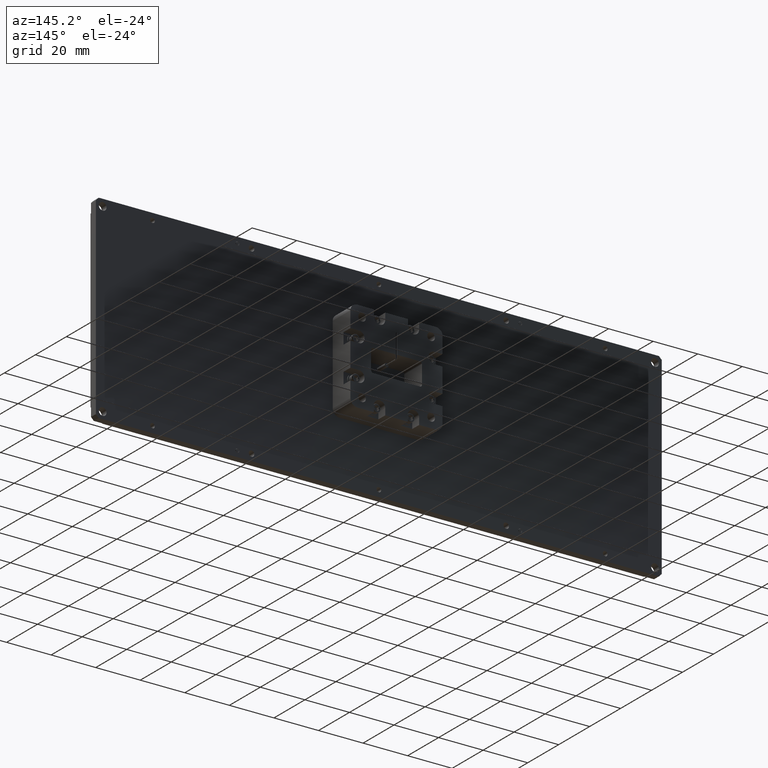
[diagram: clean part render]
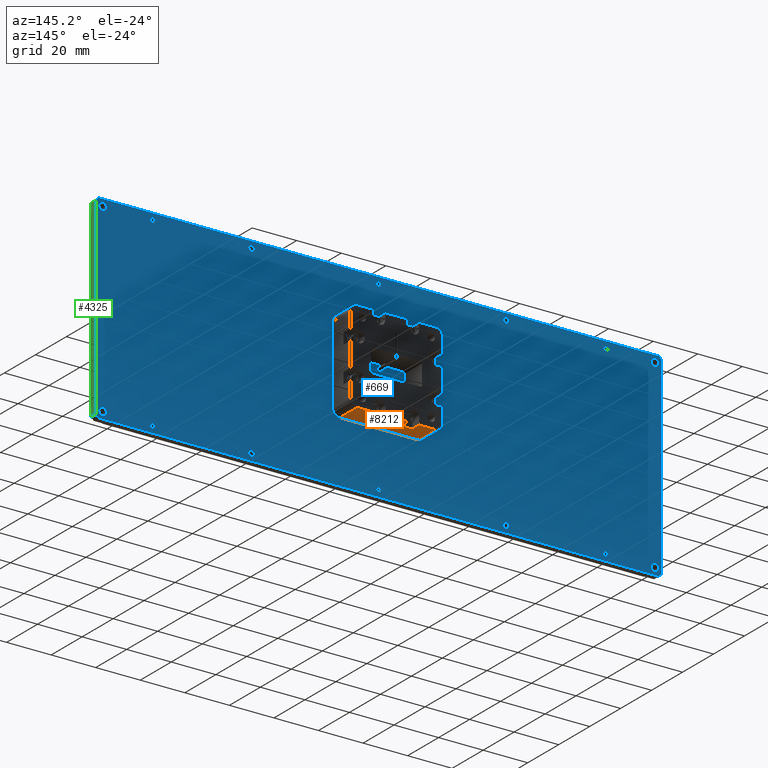
[diagram: same view with three faces highlighted in distinct colors, each labeled with its STEP entity id]
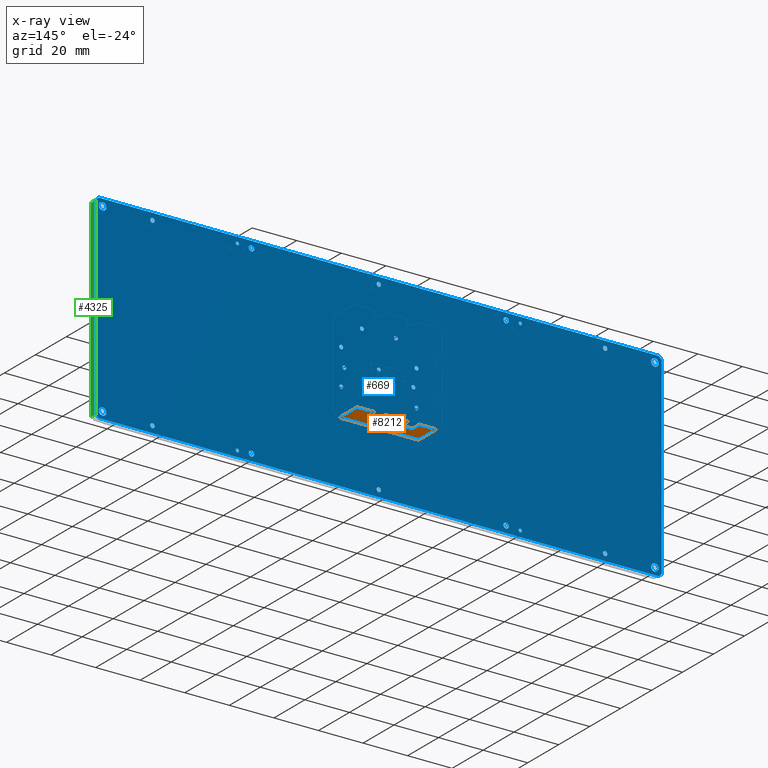
[diagram: x-ray of the same camera — body ghosted, the three highlighted faces saturated]
A machine part, auxiliary view with three faces highlighted in distinct colors.
The next image is the same camera in x-ray (body ghosted, the three faces saturated) — at least one of them is partly hidden behind the body in this view.
Their STEP definitions:

[orange] entity #8212 — the highlighted planar face has unit normal (0, -0, 1).
#454 = LINE ( 'NONE', #5999, #4130 ) ;
#583 = VERTEX_POINT ( 'NONE', #3434 ) ;
#700 = VERTEX_POINT ( 'NONE', #942 ) ;
#942 = CARTESIAN_POINT ( 'NONE',  ( -27.86510945080825152, 30.29423224274894721, -16.60516518917519591 ) ) ;
#962 = DIRECTION ( 'NONE',  ( -1.000000000000000000, 0.000000000000000000, 0.000000000000000000 ) ) ;
#1268 = EDGE_CURVE ( 'NONE', #11070, #700, #12288, .T. ) ;
#1515 = DIRECTION ( 'NONE',  ( -0.000000000000000000, 1.000000000000000000, -0.000000000000000000 ) ) ;
#1516 = CARTESIAN_POINT ( 'NONE',  ( -32.94510945080825337, 25.84923224274894693, -16.60516518917519591 ) ) ;
#1749 = ORIENTED_EDGE ( 'NONE', *, *, #2022, .F. ) ;
#1779 = CARTESIAN_POINT ( 'NONE',  ( -22.78510945080825323, 18.86423224274894750, -16.60516518917519591 ) ) ;
#1864 = EDGE_CURVE ( 'NONE', #583, #9210, #6016, .T. ) ;
#1911 = VECTOR ( 'NONE', #8780, 1000.000000000000000 ) ;
#2022 = EDGE_CURVE ( 'NONE', #11070, #6120, #12619, .T. ) ;
#2310 = EDGE_CURVE ( 'NONE', #9761, #583, #7180, .T. ) ;
#2418 = CARTESIAN_POINT ( 'NONE',  ( -22.78510945080825323, 30.29423224274894721, -16.60516518917519591 ) ) ;
#2638 = DIRECTION ( 'NONE',  ( -1.000000000000000000, 0.000000000000000000, 1.675980364211204327E-16 ) ) ;
#2652 = CARTESIAN_POINT ( 'NONE',  ( -40.43810945080826258, 30.29423224274894721, -16.60516518917518880 ) ) ;
#2673 = EDGE_LOOP ( 'NONE', ( #12142, #13110, #6164, #7332, #6672, #7951, #8255, #12673, #10383, #13485, #1749, #6540 ) ) ;
#2818 = DIRECTION ( 'NONE',  ( 0.000000000000000000, -1.000000000000000000, 0.000000000000000000 ) ) ;
#2916 = CARTESIAN_POINT ( 'NONE',  ( -12.62510945080825131, 25.84923224274894693, -16.60516518917519591 ) ) ;
#3052 = DIRECTION ( 'NONE',  ( -0.000000000000000000, 1.000000000000000000, -0.000000000000000000 ) ) ;
#3203 = DIRECTION ( 'NONE',  ( -1.000000000000000000, -0.000000000000000000, -0.000000000000000000 ) ) ;
#3318 = VECTOR ( 'NONE', #12961, 1000.000000000000000 ) ;
#3359 = LINE ( 'NONE', #7629, #4736 ) ;
#3434 = CARTESIAN_POINT ( 'NONE',  ( -40.43810945080826258, 18.86423224274894750, -16.60516518917518880 ) ) ;
#3436 = CARTESIAN_POINT ( 'NONE',  ( -5.132109450808237661, 18.86423224274894750, -16.60516518917519591 ) ) ;
#3471 = VECTOR ( 'NONE', #3203, 1000.000000000000000 ) ;
#3775 = EDGE_CURVE ( 'NONE', #9837, #9761, #3871, .T. ) ;
#3792 = VERTEX_POINT ( 'NONE', #10192 ) ;
#3871 = LINE ( 'NONE', #12362, #8957 ) ;
#3905 = DIRECTION ( 'NONE',  ( 1.675980364211204327E-16, -0.000000000000000000, 1.000000000000000000 ) ) ;
#4130 = VECTOR ( 'NONE', #4873, 1000.000000000000000 ) ;
#4523 = LINE ( 'NONE', #2418, #3318 ) ;
#4736 = VECTOR ( 'NONE', #8824, 1000.000000000000000 ) ;
#4741 = DIRECTION ( 'NONE',  ( 1.000000000000000000, 0.000000000000000000, -1.675980364211204327E-16 ) ) ;
#4873 = DIRECTION ( 'NONE',  ( -0.000000000000000000, 1.000000000000000000, -0.000000000000000000 ) ) ;
#4932 = CARTESIAN_POINT ( 'NONE',  ( -17.70510945080824783, 25.84923224274894693, -16.60516518917519591 ) ) ;
#5181 = CARTESIAN_POINT ( 'NONE',  ( -22.78510945080825323, 30.29423224274894721, -16.60516518917519591 ) ) ;
#5239 = VERTEX_POINT ( 'NONE', #12028 ) ;
#5532 = EDGE_CURVE ( 'NONE', #9837, #5239, #8624, .T. ) ;
#5953 = EDGE_CURVE ( 'NONE', #8318, #9934, #12687, .T. ) ;
#5999 = CARTESIAN_POINT ( 'NONE',  ( -32.94510945080825337, 25.84923224274894693, -16.60516518917519591 ) ) ;
#6016 = LINE ( 'NONE', #2652, #7693 ) ;
#6120 = VERTEX_POINT ( 'NONE', #1516 ) ;
#6164 = ORIENTED_EDGE ( 'NONE', *, *, #5953, .F. ) ;
#6328 = CARTESIAN_POINT ( 'NONE',  ( -12.62510945080825131, 25.84923224274894693, -16.60516518917519591 ) ) ;
#6540 = ORIENTED_EDGE ( 'NONE', *, *, #1268, .T. ) ;
#6562 = VECTOR ( 'NONE', #962, 1000.000000000000000 ) ;
#6672 = ORIENTED_EDGE ( 'NONE', *, *, #5532, .F. ) ;
#7021 = VECTOR ( 'NONE', #2638, 1000.000000000000000 ) ;
#7031 = VECTOR ( 'NONE', #9474, 1000.000000000000000 ) ;
#7180 = LINE ( 'NONE', #1779, #7021 ) ;
#7275 = CARTESIAN_POINT ( 'NONE',  ( -27.86510945080825152, 25.84923224274894693, -16.60516518917519591 ) ) ;
#7332 = ORIENTED_EDGE ( 'NONE', *, *, #12718, .T. ) ;
#7629 = CARTESIAN_POINT ( 'NONE',  ( -22.78510945080825323, 30.29423224274894721, -16.60516518917519591 ) ) ;
#7693 = VECTOR ( 'NONE', #12401, 1000.000000000000000 ) ;
#7951 = ORIENTED_EDGE ( 'NONE', *, *, #3775, .T. ) ;
#8106 = CARTESIAN_POINT ( 'NONE',  ( -17.70510945080824783, 25.84923224274894693, -16.60516518917519591 ) ) ;
#8212 = ADVANCED_FACE ( 'NONE', ( #11278 ), #9314, .F. ) ;
#8255 = ORIENTED_EDGE ( 'NONE', *, *, #2310, .T. ) ;
#8318 = VERTEX_POINT ( 'NONE', #2916 ) ;
#8442 = CARTESIAN_POINT ( 'NONE',  ( -40.43810945080826258, 30.29423224274894721, -16.60516518917518880 ) ) ;
#8624 = LINE ( 'NONE', #5181, #7031 ) ;
#8780 = DIRECTION ( 'NONE',  ( -0.000000000000000000, 1.000000000000000000, -0.000000000000000000 ) ) ;
#8824 = DIRECTION ( 'NONE',  ( -1.000000000000000000, 0.000000000000000000, 1.675980364211204327E-16 ) ) ;
#8957 = VECTOR ( 'NONE', #2818, 1000.000000000000000 ) ;
#8971 = CARTESIAN_POINT ( 'NONE',  ( -27.86510945080825152, 25.84923224274894693, -16.60516518917519591 ) ) ;
#9054 = CARTESIAN_POINT ( 'NONE',  ( -32.94510945080825337, 30.29423224274894721, -16.60516518917519591 ) ) ;
#9210 = VERTEX_POINT ( 'NONE', #8442 ) ;
#9314 = PLANE ( 'NONE',  #12669 ) ;
#9474 = DIRECTION ( 'NONE',  ( -1.000000000000000000, 0.000000000000000000, 1.675980364211204327E-16 ) ) ;
#9604 = CARTESIAN_POINT ( 'NONE',  ( -17.70510945080824783, 25.84923224274894693, -16.60516518917519591 ) ) ;
#9761 = VERTEX_POINT ( 'NONE', #3436 ) ;
#9837 = VERTEX_POINT ( 'NONE', #12913 ) ;
#9934 = VERTEX_POINT ( 'NONE', #8106 ) ;
#10178 = VECTOR ( 'NONE', #1515, 1000.000000000000000 ) ;
#10192 = CARTESIAN_POINT ( 'NONE',  ( -17.70510945080824783, 30.29423224274894721, -16.60516518917519591 ) ) ;
#10297 = CARTESIAN_POINT ( 'NONE',  ( -22.78510945080825323, 30.29423224274894721, -16.60516518917519591 ) ) ;
#10383 = ORIENTED_EDGE ( 'NONE', *, *, #11171, .F. ) ;
#10591 = VECTOR ( 'NONE', #3052, 1000.000000000000000 ) ;
#11070 = VERTEX_POINT ( 'NONE', #8971 ) ;
#11171 = EDGE_CURVE ( 'NONE', #13474, #9210, #4523, .T. ) ;
#11202 = LINE ( 'NONE', #4932, #10178 ) ;
#11278 = FACE_OUTER_BOUND ( 'NONE', #2673, .T. ) ;
#12028 = CARTESIAN_POINT ( 'NONE',  ( -12.62510945080825131, 30.29423224274894721, -16.60516518917519591 ) ) ;
#12076 = CARTESIAN_POINT ( 'NONE',  ( -27.86510945080825152, 25.84923224274894693, -16.60516518917519591 ) ) ;
#12142 = ORIENTED_EDGE ( 'NONE', *, *, #12149, .F. ) ;
#12149 = EDGE_CURVE ( 'NONE', #3792, #700, #3359, .T. ) ;
#12288 = LINE ( 'NONE', #12076, #1911 ) ;
#12362 = CARTESIAN_POINT ( 'NONE',  ( -5.132109450808237661, 30.29423224274894721, -16.60516518917519591 ) ) ;
#12401 = DIRECTION ( 'NONE',  ( -0.000000000000000000, 1.000000000000000000, -0.000000000000000000 ) ) ;
#12453 = LINE ( 'NONE', #6328, #10591 ) ;
#12619 = LINE ( 'NONE', #7275, #6562 ) ;
#12669 = AXIS2_PLACEMENT_3D ( 'NONE', #10297, #3905, #4741 ) ;
#12673 = ORIENTED_EDGE ( 'NONE', *, *, #1864, .T. ) ;
#12687 = LINE ( 'NONE', #9604, #3471 ) ;
#12718 = EDGE_CURVE ( 'NONE', #8318, #5239, #12453, .T. ) ;
#12913 = CARTESIAN_POINT ( 'NONE',  ( -5.132109450808237661, 30.29423224274894721, -16.60516518917519591 ) ) ;
#12961 = DIRECTION ( 'NONE',  ( -1.000000000000000000, 0.000000000000000000, 1.675980364211204327E-16 ) ) ;
#13110 = ORIENTED_EDGE ( 'NONE', *, *, #13813, .F. ) ;
#13474 = VERTEX_POINT ( 'NONE', #9054 ) ;
#13485 = ORIENTED_EDGE ( 'NONE', *, *, #13823, .F. ) ;
#13813 = EDGE_CURVE ( 'NONE', #9934, #3792, #11202, .T. ) ;
#13823 = EDGE_CURVE ( 'NONE', #6120, #13474, #454, .T. ) ;

[blue] entity #669 — the highlighted planar face has unit normal (0, 1, 0).
#16 = CARTESIAN_POINT ( 'NONE',  ( -22.78510945080824968, 18.86423224274894750, 7.270834810824795547 ) ) ;
#27 = VERTEX_POINT ( 'NONE', #10537 ) ;
#32 = CIRCLE ( 'NONE', #11471, 1.249999999999987121 ) ;
#58 = VERTEX_POINT ( 'NONE', #4154 ) ;
#83 = AXIS2_PLACEMENT_3D ( 'NONE', #10064, #5782, #714 ) ;
#106 = CARTESIAN_POINT ( 'NONE',  ( -86.28510945080824968, 18.86423224274894750, -40.71611518917521266 ) ) ;
#110 = CARTESIAN_POINT ( 'NONE',  ( -22.78510945080824968, 18.86423224274894750, 41.68783481082478204 ) ) ;
#164 = DIRECTION ( 'NONE',  ( -0.000000000000000000, 1.000000000000000000, -0.000000000000000000 ) ) ;
#179 = DIRECTION ( 'NONE',  ( -0.000000000000000000, 1.000000000000000000, -0.000000000000000000 ) ) ;
#223 = DIRECTION ( 'NONE',  ( 0.000000000000000000, 0.000000000000000000, 1.000000000000000000 ) ) ;
#262 = LINE ( 'NONE', #4547, #12912 ) ;
#269 = CARTESIAN_POINT ( 'NONE',  ( -5.894109450808249662, 18.86423224274894750, -4.794165189175189745 ) ) ;
#290 = CARTESIAN_POINT ( 'NONE',  ( -124.3851094508082440, 18.86423224274894750, -42.14116518917519016 ) ) ;
#292 = AXIS2_PLACEMENT_3D ( 'NONE', #1165, #9462, #4125 ) ;
#367 = CARTESIAN_POINT ( 'NONE',  ( 40.71489054919177875, 18.86423224274894750, 42.06883481082478227 ) ) ;
#377 = DIRECTION ( 'NONE',  ( 0.000000000000000000, 0.000000000000000000, 1.000000000000000000 ) ) ;
#415 = LINE ( 'NONE', #7849, #5712 ) ;
#438 = DIRECTION ( 'NONE',  ( 0.000000000000000000, 0.000000000000000000, 1.000000000000000000 ) ) ;
#469 = FACE_BOUND ( 'NONE', #7782, .T. ) ;
#494 = CARTESIAN_POINT ( 'NONE',  ( -39.67610945080825502, 18.86423224274894750, 12.09683481082480405 ) ) ;
#514 = CARTESIAN_POINT ( 'NONE',  ( -30.40510945080824712, 18.86423224274894750, -14.57316518917518344 ) ) ;
#542 = EDGE_LOOP ( 'NONE', ( #832, #10847 ) ) ;
#574 = ORIENTED_EDGE ( 'NONE', *, *, #10638, .F. ) ;
#603 = ORIENTED_EDGE ( 'NONE', *, *, #6511, .F. ) ;
#607 = EDGE_LOOP ( 'NONE', ( #10479, #4217 ) ) ;
#608 = CIRCLE ( 'NONE', #2394, 0.8890000000000009006 ) ;
#609 = EDGE_LOOP ( 'NONE', ( #5060, #13328 ) ) ;
#657 = DIRECTION ( 'NONE',  ( 0.000000000000000000, 0.000000000000000000, 1.000000000000000000 ) ) ;
#659 = DIRECTION ( 'NONE',  ( 0.000000000000000000, 0.000000000000000000, -1.000000000000000000 ) ) ;
#669 = ADVANCED_FACE ( 'NONE', ( #1531, #4035, #11404, #12736, #2902, #5805, #12456, #10089, #4103, #8172, #12525, #1773, #9037, #469, #12597, #807, #4745, #13318, #13792, #3889, #10352, #7248, #7328, #5217, #728, #13584, #3963, #8249, #6263, #8314 ), #7172, .T. ) ;
#714 = DIRECTION ( 'NONE',  ( 0.000000000000000000, 0.000000000000000000, 1.000000000000000000 ) ) ;
#723 = AXIS2_PLACEMENT_3D ( 'NONE', #10903, #164, #2123 ) ;
#728 = FACE_BOUND ( 'NONE', #6335, .T. ) ;
#779 = VERTEX_POINT ( 'NONE', #11823 ) ;
#807 = FACE_BOUND ( 'NONE', #8011, .T. ) ;
#826 = AXIS2_PLACEMENT_3D ( 'NONE', #13422, #10270, #8935 ) ;
#832 = ORIENTED_EDGE ( 'NONE', *, *, #13800, .F. ) ;
#916 = CARTESIAN_POINT ( 'NONE',  ( -146.7371094508082479, 18.86423224274894750, -42.84336518917518788 ) ) ;
#919 = ORIENTED_EDGE ( 'NONE', *, *, #10229, .F. ) ;
#928 = CARTESIAN_POINT ( 'NONE',  ( 40.71489054919175032, 18.86423224274894750, -42.27821518917521360 ) ) ;
#939 = DIRECTION ( 'NONE',  ( 0.000000000000000000, 0.000000000000000000, 1.000000000000000000 ) ) ;
#950 = CIRCLE ( 'NONE', #2296, 1.249999999999987121 ) ;
#994 = ORIENTED_EDGE ( 'NONE', *, *, #6396, .F. ) ;
#1048 = CARTESIAN_POINT ( 'NONE',  ( -38.27910945080824945, 18.86423224274894750, 4.946734810824795936 ) ) ;
#1059 = AXIS2_PLACEMENT_3D ( 'NONE', #11470, #1848, #6131 ) ;
#1075 = CARTESIAN_POINT ( 'NONE',  ( -7.291109450808254344, 18.86423224274894750, 4.095834810824808159 ) ) ;
#1082 = VERTEX_POINT ( 'NONE', #6252 ) ;
#1134 = AXIS2_PLACEMENT_3D ( 'NONE', #367, #5836, #12022 ) ;
#1144 = DIRECTION ( 'NONE',  ( -0.000000000000000000, 1.000000000000000000, -0.000000000000000000 ) ) ;
#1165 = CARTESIAN_POINT ( 'NONE',  ( -79.93510945080825536, 18.86423224274894750, 41.68783481082478204 ) ) ;
#1167 = VERTEX_POINT ( 'NONE', #7378 ) ;
#1264 = VERTEX_POINT ( 'NONE', #1332 ) ;
#1292 = VERTEX_POINT ( 'NONE', #1404 ) ;
#1332 = CARTESIAN_POINT ( 'NONE',  ( -5.894109450808246109, 18.86423224274894750, 11.20783481082481003 ) ) ;
#1354 = VECTOR ( 'NONE', #5666, 1000.000000000000114 ) ;
#1384 = AXIS2_PLACEMENT_3D ( 'NONE', #3820, #10433, #5228 ) ;
#1404 = CARTESIAN_POINT ( 'NONE',  ( -22.78510945080824968, 18.86423224274894750, 6.419934810824807769 ) ) ;
#1411 = ORIENTED_EDGE ( 'NONE', *, *, #9023, .F. ) ;
#1452 = CIRCLE ( 'NONE', #13791, 1.024999999999991251 ) ;
#1455 = DIRECTION ( 'NONE',  ( -1.000000000000000000, 0.000000000000000000, 0.000000000000000000 ) ) ;
#1495 = CIRCLE ( 'NONE', #826, 1.024999999999984368 ) ;
#1531 = FACE_BOUND ( 'NONE', #609, .T. ) ;
#1536 = ORIENTED_EDGE ( 'NONE', *, *, #5334, .F. ) ;
#1558 = ORIENTED_EDGE ( 'NONE', *, *, #7869, .F. ) ;
#1580 = CARTESIAN_POINT ( 'NONE',  ( -124.3851094508082440, 18.86423224274894750, -41.11616518917520580 ) ) ;
#1594 = DIRECTION ( 'NONE',  ( 0.7071067811865474617, -0.000000000000000000, -0.7071067811865474617 ) ) ;
#1602 = ORIENTED_EDGE ( 'NONE', *, *, #8092, .F. ) ;
#1603 = AXIS2_PLACEMENT_3D ( 'NONE', #11465, #7109, #1768 ) ;
#1667 = EDGE_CURVE ( 'NONE', #7283, #10912, #4113, .T. ) ;
#1683 = DIRECTION ( 'NONE',  ( 0.000000000000000000, 0.000000000000000000, 1.000000000000000000 ) ) ;
#1699 = DIRECTION ( 'NONE',  ( 0.000000000000000000, 0.000000000000000000, 1.000000000000000000 ) ) ;
#1735 = ORIENTED_EDGE ( 'NONE', *, *, #6481, .F. ) ;
#1745 = DIRECTION ( 'NONE',  ( 0.000000000000000000, 0.000000000000000000, 1.000000000000000000 ) ) ;
#1768 = DIRECTION ( 'NONE',  ( 0.000000000000000000, 0.000000000000000000, 1.000000000000000000 ) ) ;
#1771 = CARTESIAN_POINT ( 'NONE',  ( -30.40510945080824712, 18.86423224274894750, 21.87583481082480930 ) ) ;
#1773 = FACE_BOUND ( 'NONE', #2911, .T. ) ;
#1823 = AXIS2_PLACEMENT_3D ( 'NONE', #8024, #2822, #438 ) ;
#1842 = CIRCLE ( 'NONE', #7679, 1.024999999999984368 ) ;
#1845 = DIRECTION ( 'NONE',  ( 0.000000000000000000, 0.000000000000000000, 1.000000000000000000 ) ) ;
#1848 = DIRECTION ( 'NONE',  ( 0.000000000000000000, 1.000000000000000000, 0.000000000000000000 ) ) ;
#1853 = CARTESIAN_POINT ( 'NONE',  ( -7.291109450808254344, 18.86423224274894750, 4.946734810824794160 ) ) ;
#1875 = VERTEX_POINT ( 'NONE', #6084 ) ;
#1894 = EDGE_LOOP ( 'NONE', ( #3738, #1735 ) ) ;
#1910 = AXIS2_PLACEMENT_3D ( 'NONE', #11468, #7170, #2125 ) ;
#1912 = CIRCLE ( 'NONE', #9763, 0.8890000000000009006 ) ;
#1951 = VERTEX_POINT ( 'NONE', #11845 ) ;
#1967 = EDGE_CURVE ( 'NONE', #13114, #7223, #11282, .T. ) ;
#1990 = CARTESIAN_POINT ( 'NONE',  ( -146.7371094508082479, 18.86423224274894750, 41.68783481082478204 ) ) ;
#2004 = CIRCLE ( 'NONE', #7836, 1.249999999999987121 ) ;
#2028 = DIRECTION ( 'NONE',  ( -0.000000000000000000, 1.000000000000000000, -0.000000000000000000 ) ) ;
#2053 = CIRCLE ( 'NONE', #1384, 0.8890000000000009006 ) ;
#2054 = DIRECTION ( 'NONE',  ( 0.000000000000000000, 0.000000000000000000, 1.000000000000000000 ) ) ;
#2062 = EDGE_LOOP ( 'NONE', ( #1602, #12316 ) ) ;
#2066 = CIRCLE ( 'NONE', #5206, 0.8508999999999886654 ) ;
#2123 = DIRECTION ( 'NONE',  ( 0.000000000000000000, 0.000000000000000000, 1.000000000000000000 ) ) ;
#2125 = DIRECTION ( 'NONE',  ( 0.000000000000000000, 0.000000000000000000, 1.000000000000000000 ) ) ;
#2154 = AXIS2_PLACEMENT_3D ( 'NONE', #3677, #2621, #7027 ) ;
#2211 = CARTESIAN_POINT ( 'NONE',  ( -30.40510945080824712, 18.86423224274894750, -13.68416518917518410 ) ) ;
#2257 = CIRCLE ( 'NONE', #2702, 0.7810499999999914733 ) ;
#2296 = AXIS2_PLACEMENT_3D ( 'NONE', #7110, #11675, #2054 ) ;
#2325 = VECTOR ( 'NONE', #10337, 1000.000000000000000 ) ;
#2346 = CIRCLE ( 'NONE', #3482, 1.024999999999984368 ) ;
#2365 = EDGE_CURVE ( 'NONE', #12255, #7787, #4566, .T. ) ;
#2367 = ORIENTED_EDGE ( 'NONE', *, *, #2802, .F. ) ;
#2374 = DIRECTION ( 'NONE',  ( -0.000000000000000000, 1.000000000000000000, -0.000000000000000000 ) ) ;
#2380 = VERTEX_POINT ( 'NONE', #1853 ) ;
#2385 = ORIENTED_EDGE ( 'NONE', *, *, #8391, .F. ) ;
#2394 = AXIS2_PLACEMENT_3D ( 'NONE', #494, #10317, #3733 ) ;
#2400 = CIRCLE ( 'NONE', #3973, 0.8890000000000009006 ) ;
#2422 = CARTESIAN_POINT ( 'NONE',  ( -22.78510945080824968, 18.86423224274894750, 42.71283481082477351 ) ) ;
#2500 = CARTESIAN_POINT ( 'NONE',  ( 78.81489054919174464, 18.86423224274894750, 41.68783481082478914 ) ) ;
#2535 = AXIS2_PLACEMENT_3D ( 'NONE', #4631, #12214, #6792 ) ;
#2582 = CARTESIAN_POINT ( 'NONE',  ( 62.30489054919173242, 18.86423224274894750, 85.37583481082478443 ) ) ;
#2601 = CARTESIAN_POINT ( 'NONE',  ( -124.3851094508082440, 18.86423224274894750, -41.11616518917520580 ) ) ;
#2611 = DIRECTION ( 'NONE',  ( -0.7071067811865474617, 0.000000000000000000, -0.7071067811865474617 ) ) ;
#2621 = DIRECTION ( 'NONE',  ( -0.000000000000000000, 1.000000000000000000, -0.000000000000000000 ) ) ;
#2640 = ORIENTED_EDGE ( 'NONE', *, *, #11830, .F. ) ;
#2675 = LINE ( 'NONE', #6951, #9977 ) ;
#2678 = DIRECTION ( 'NONE',  ( -0.000000000000000000, 1.000000000000000000, -0.000000000000000000 ) ) ;
#2702 = AXIS2_PLACEMENT_3D ( 'NONE', #5290, #7389, #4034 ) ;
#2711 = CARTESIAN_POINT ( 'NONE',  ( -30.40510945080824712, 18.86423224274894750, 21.87583481082480930 ) ) ;
#2725 = CARTESIAN_POINT ( 'NONE',  ( 34.36489054919175601, 18.86423224274894750, -39.86616518917521290 ) ) ;
#2731 = VERTEX_POINT ( 'NONE', #8216 ) ;
#2736 = DIRECTION ( 'NONE',  ( -0.000000000000000000, 1.000000000000000000, -0.000000000000000000 ) ) ;
#2755 = EDGE_CURVE ( 'NONE', #9592, #12198, #9068, .T. ) ;
#2756 = AXIS2_PLACEMENT_3D ( 'NONE', #3418, #7688, #11974 ) ;
#2771 = ORIENTED_EDGE ( 'NONE', *, *, #7904, .T. ) ;
#2802 = EDGE_CURVE ( 'NONE', #4399, #6946, #5928, .T. ) ;
#2807 = DIRECTION ( 'NONE',  ( 0.000000000000000000, 0.000000000000000000, 1.000000000000000000 ) ) ;
#2822 = DIRECTION ( 'NONE',  ( -0.000000000000000000, 1.000000000000000000, -0.000000000000000000 ) ) ;
#2848 = AXIS2_PLACEMENT_3D ( 'NONE', #10467, #10529, #3022 ) ;
#2850 = VERTEX_POINT ( 'NONE', #3228 ) ;
#2852 = CARTESIAN_POINT ( 'NONE',  ( -124.3851094508082440, 18.86423224274894750, -40.09116518917522143 ) ) ;
#2874 = CARTESIAN_POINT ( 'NONE',  ( -79.93510945080825536, 18.86423224274894750, 42.93783481082476783 ) ) ;
#2886 = ORIENTED_EDGE ( 'NONE', *, *, #4282, .F. ) ;
#2900 = DIRECTION ( 'NONE',  ( -0.000000000000000000, 1.000000000000000000, -0.000000000000000000 ) ) ;
#2902 = FACE_BOUND ( 'NONE', #3709, .T. ) ;
#2908 = EDGE_CURVE ( 'NONE', #13730, #6882, #415, .T. ) ;
#2911 = EDGE_LOOP ( 'NONE', ( #994, #10395 ) ) ;
#2913 = VERTEX_POINT ( 'NONE', #269 ) ;
#2972 = EDGE_CURVE ( 'NONE', #3076, #13710, #1452, .T. ) ;
#2988 = AXIS2_PLACEMENT_3D ( 'NONE', #3572, #2374, #5602 ) ;
#2994 = CARTESIAN_POINT ( 'NONE',  ( -39.67610945080825502, 18.86423224274894750, 12.98583481082480517 ) ) ;
#3009 = EDGE_CURVE ( 'NONE', #11928, #7147, #3915, .T. ) ;
#3022 = DIRECTION ( 'NONE',  ( 0.000000000000000000, 0.000000000000000000, 1.000000000000000000 ) ) ;
#3076 = VERTEX_POINT ( 'NONE', #4891 ) ;
#3093 = DIRECTION ( 'NONE',  ( -0.000000000000000000, 1.000000000000000000, -0.000000000000000000 ) ) ;
#3138 = AXIS2_PLACEMENT_3D ( 'NONE', #12486, #11710, #7569 ) ;
#3184 = AXIS2_PLACEMENT_3D ( 'NONE', #5584, #179, #8739 ) ;
#3209 = VERTEX_POINT ( 'NONE', #10724 ) ;
#3228 = CARTESIAN_POINT ( 'NONE',  ( 34.36489054919175601, 18.86423224274894750, -42.36616518917518448 ) ) ;
#3236 = CARTESIAN_POINT ( 'NONE',  ( 34.36489054919175601, 18.86423224274894750, 41.68783481082478914 ) ) ;
#3310 = EDGE_CURVE ( 'NONE', #779, #1264, #12372, .T. ) ;
#3335 = EDGE_CURVE ( 'NONE', #1292, #5673, #8568, .T. ) ;
#3360 = CARTESIAN_POINT ( 'NONE',  ( -146.7371094508082479, 18.86423224274894750, 39.96063481082479996 ) ) ;
#3376 = DIRECTION ( 'NONE',  ( -0.000000000000000000, 1.000000000000000000, -0.000000000000000000 ) ) ;
#3418 = CARTESIAN_POINT ( 'NONE',  ( 40.71489054919175032, 18.86423224274894750, -41.49716518917522023 ) ) ;
#3425 = CIRCLE ( 'NONE', #3184, 1.727199999999984303 ) ;
#3428 = DIRECTION ( 'NONE',  ( -0.000000000000000000, 1.000000000000000000, -0.000000000000000000 ) ) ;
#3439 = CARTESIAN_POINT ( 'NONE',  ( -15.16510945080825223, 18.86423224274894750, -13.68416518917518943 ) ) ;
#3443 = EDGE_CURVE ( 'NONE', #27, #2913, #2053, .T. ) ;
#3446 = EDGE_LOOP ( 'NONE', ( #9856, #919 ) ) ;
#3450 = EDGE_LOOP ( 'NONE', ( #9648, #6657 ) ) ;
#3482 = AXIS2_PLACEMENT_3D ( 'NONE', #2500, #3428, #6851 ) ;
#3541 = CARTESIAN_POINT ( 'NONE',  ( 104.2148905491917503, 18.86423224274894750, -42.89416518917520449 ) ) ;
#3564 = CARTESIAN_POINT ( 'NONE',  ( 104.2148905491917503, 18.86423224274894750, -44.16416518917521472 ) ) ;
#3569 = CARTESIAN_POINT ( 'NONE',  ( -22.78510945080824968, 18.86423224274894750, 8.121734810824785100 ) ) ;
#3572 = CARTESIAN_POINT ( 'NONE',  ( 34.36489054919175601, 18.86423224274894750, 41.68783481082478914 ) ) ;
#3581 = EDGE_LOOP ( 'NONE', ( #2385, #10741 ) ) ;
#3613 = ORIENTED_EDGE ( 'NONE', *, *, #8553, .F. ) ;
#3638 = CARTESIAN_POINT ( 'NONE',  ( -107.8751094508082389, 18.86423224274894750, 85.37583481082478443 ) ) ;
#3642 = AXIS2_PLACEMENT_3D ( 'NONE', #8381, #8243, #10413 ) ;
#3648 = CARTESIAN_POINT ( 'NONE',  ( -22.78510945080824968, 18.86423224274894750, 41.68783481082478204 ) ) ;
#3662 = CARTESIAN_POINT ( 'NONE',  ( -15.16510945080825223, 18.86423224274894750, -13.68416518917518943 ) ) ;
#3677 = CARTESIAN_POINT ( 'NONE',  ( -86.28510945080824968, 18.86423224274894750, 42.06883481082479648 ) ) ;
#3683 = EDGE_CURVE ( 'NONE', #9653, #10561, #7173, .T. ) ;
#3701 = CIRCLE ( 'NONE', #9293, 1.727199999999984303 ) ;
#3709 = EDGE_LOOP ( 'NONE', ( #2367, #603 ) ) ;
#3731 = EDGE_LOOP ( 'NONE', ( #9564, #5139 ) ) ;
#3733 = DIRECTION ( 'NONE',  ( 0.000000000000000000, 0.000000000000000000, 1.000000000000000000 ) ) ;
#3738 = ORIENTED_EDGE ( 'NONE', *, *, #10771, .F. ) ;
#3804 = CARTESIAN_POINT ( 'NONE',  ( 34.36489054919175601, 18.86423224274894750, -41.11616518917519869 ) ) ;
#3815 = EDGE_CURVE ( 'NONE', #11861, #2850, #2004, .T. ) ;
#3820 = CARTESIAN_POINT ( 'NONE',  ( -5.894109450808249662, 18.86423224274894750, -3.905165189175189067 ) ) ;
#3842 = EDGE_LOOP ( 'NONE', ( #10473, #1411 ) ) ;
#3889 = FACE_BOUND ( 'NONE', #13480, .T. ) ;
#3902 = VERTEX_POINT ( 'NONE', #916 ) ;
#3915 = LINE ( 'NONE', #13460, #9084 ) ;
#3937 = AXIS2_PLACEMENT_3D ( 'NONE', #10571, #10504, #8403 ) ;
#3953 = VERTEX_POINT ( 'NONE', #11724 ) ;
#3963 = FACE_BOUND ( 'NONE', #6707, .T. ) ;
#3973 = AXIS2_PLACEMENT_3D ( 'NONE', #7501, #7639, #5542 ) ;
#3983 = CARTESIAN_POINT ( 'NONE',  ( -22.78510945080824968, 18.86423224274894750, -42.14116518917519727 ) ) ;
#3995 = EDGE_CURVE ( 'NONE', #10912, #7283, #8062, .T. ) ;
#4032 = CARTESIAN_POINT ( 'NONE',  ( 78.81489054919174464, 18.86423224274894750, 41.68783481082478914 ) ) ;
#4034 = DIRECTION ( 'NONE',  ( 0.000000000000000000, 0.000000000000000000, 1.000000000000000000 ) ) ;
#4035 = FACE_BOUND ( 'NONE', #542, .T. ) ;
#4051 = EDGE_LOOP ( 'NONE', ( #10498, #574 ) ) ;
#4075 = CARTESIAN_POINT ( 'NONE',  ( -79.93510945080825536, 18.86423224274894750, -41.11616518917520580 ) ) ;
#4103 = FACE_BOUND ( 'NONE', #7197, .T. ) ;
#4105 = DIRECTION ( 'NONE',  ( 0.000000000000000000, 0.000000000000000000, 1.000000000000000000 ) ) ;
#4113 = CIRCLE ( 'NONE', #2988, 1.249999999999987121 ) ;
#4118 = CIRCLE ( 'NONE', #2756, 0.7810499999999914733 ) ;
#4125 = DIRECTION ( 'NONE',  ( 0.000000000000000000, 0.000000000000000000, 1.000000000000000000 ) ) ;
#4129 = CIRCLE ( 'NONE', #6347, 0.8890000000000009006 ) ;
#4145 = CIRCLE ( 'NONE', #7043, 0.8889999999999991243 ) ;
#4154 = CARTESIAN_POINT ( 'NONE',  ( -148.5151094508082394, 18.86423224274894750, -44.16416518917519340 ) ) ;
#4204 = DIRECTION ( 'NONE',  ( 0.000000000000000000, 0.000000000000000000, 1.000000000000000000 ) ) ;
#4217 = ORIENTED_EDGE ( 'NONE', *, *, #5814, .F. ) ;
#4248 = EDGE_LOOP ( 'NONE', ( #13129, #13382 ) ) ;
#4252 = VERTEX_POINT ( 'NONE', #11507 ) ;
#4282 = EDGE_CURVE ( 'NONE', #8021, #2380, #9197, .T. ) ;
#4303 = DIRECTION ( 'NONE',  ( -0.000000000000000000, 1.000000000000000000, -0.000000000000000000 ) ) ;
#4348 = ORIENTED_EDGE ( 'NONE', *, *, #2972, .F. ) ;
#4353 = ORIENTED_EDGE ( 'NONE', *, *, #3310, .F. ) ;
#4399 = VERTEX_POINT ( 'NONE', #1048 ) ;
#4435 = ORIENTED_EDGE ( 'NONE', *, *, #5192, .F. ) ;
#4437 = EDGE_CURVE ( 'NONE', #7147, #13730, #12118, .T. ) ;
#4469 = AXIS2_PLACEMENT_3D ( 'NONE', #3236, #3376, #12925 ) ;
#4547 = CARTESIAN_POINT ( 'NONE',  ( 104.2148905491917503, 18.86423224274894750, 44.73583481082477675 ) ) ;
#4566 = CIRCLE ( 'NONE', #11973, 1.024999999999984368 ) ;
#4625 = EDGE_LOOP ( 'NONE', ( #8853, #5549 ) ) ;
#4631 = CARTESIAN_POINT ( 'NONE',  ( -5.894109450808249662, 18.86423224274894750, -3.905165189175189067 ) ) ;
#4706 = DIRECTION ( 'NONE',  ( 0.000000000000000000, 0.000000000000000000, 1.000000000000000000 ) ) ;
#4728 = CARTESIAN_POINT ( 'NONE',  ( -22.78510945080824968, 18.86423224274894750, -40.09116518917521432 ) ) ;
#4732 = CIRCLE ( 'NONE', #13260, 1.727199999999984303 ) ;
#4745 = FACE_BOUND ( 'NONE', #3581, .T. ) ;
#4810 = CIRCLE ( 'NONE', #9539, 1.024999999999984368 ) ;
#4823 = CARTESIAN_POINT ( 'NONE',  ( -86.28510945080824968, 18.86423224274894750, 41.28778481082480312 ) ) ;
#4891 = CARTESIAN_POINT ( 'NONE',  ( -22.78510945080824968, 18.86423224274894750, 40.66283481082479057 ) ) ;
#5024 = EDGE_CURVE ( 'NONE', #3953, #1082, #13242, .T. ) ;
#5040 = CIRCLE ( 'NONE', #12902, 0.8889999999999991243 ) ;
#5043 = VERTEX_POINT ( 'NONE', #12251 ) ;
#5060 = ORIENTED_EDGE ( 'NONE', *, *, #6064, .F. ) ;
#5099 = CARTESIAN_POINT ( 'NONE',  ( -39.67610945080825502, 18.86423224274894750, -3.905165189175170859 ) ) ;
#5133 = EDGE_CURVE ( 'NONE', #1951, #11080, #2257, .T. ) ;
#5139 = ORIENTED_EDGE ( 'NONE', *, *, #10885, .F. ) ;
#5154 = DIRECTION ( 'NONE',  ( 0.000000000000000000, 0.000000000000000000, 1.000000000000000000 ) ) ;
#5192 = EDGE_CURVE ( 'NONE', #13406, #8157, #11330, .T. ) ;
#5206 = AXIS2_PLACEMENT_3D ( 'NONE', #16, #9848, #223 ) ;
#5217 = FACE_BOUND ( 'NONE', #10400, .T. ) ;
#5219 = DIRECTION ( 'NONE',  ( -0.000000000000000000, 1.000000000000000000, -0.000000000000000000 ) ) ;
#5228 = DIRECTION ( 'NONE',  ( 0.000000000000000000, 0.000000000000000000, 1.000000000000000000 ) ) ;
#5233 = ORIENTED_EDGE ( 'NONE', *, *, #13446, .F. ) ;
#5242 = CIRCLE ( 'NONE', #12406, 0.8508999999999877772 ) ;
#5254 = CARTESIAN_POINT ( 'NONE',  ( -15.16510945080824335, 18.86423224274894750, 20.98683481082480640 ) ) ;
#5262 = DIRECTION ( 'NONE',  ( 0.000000000000000000, 0.000000000000000000, 1.000000000000000000 ) ) ;
#5290 = CARTESIAN_POINT ( 'NONE',  ( -86.28510945080824968, 18.86423224274894750, 42.06883481082479648 ) ) ;
#5312 = DIRECTION ( 'NONE',  ( -0.000000000000000000, 1.000000000000000000, -0.000000000000000000 ) ) ;
#5333 = VERTEX_POINT ( 'NONE', #10970 ) ;
#5334 = EDGE_CURVE ( 'NONE', #13464, #13829, #9739, .T. ) ;
#5338 = CARTESIAN_POINT ( 'NONE',  ( -38.27910945080824945, 18.86423224274894750, 4.095834810824808159 ) ) ;
#5339 = ORIENTED_EDGE ( 'NONE', *, *, #11071, .T. ) ;
#5354 = CARTESIAN_POINT ( 'NONE',  ( -22.78510945080824968, 18.86423224274894750, -41.11616518917520580 ) ) ;
#5360 = VERTEX_POINT ( 'NONE', #6535 ) ;
#5420 = CIRCLE ( 'NONE', #1823, 1.249999999999987121 ) ;
#5427 = DIRECTION ( 'NONE',  ( -0.000000000000000000, 1.000000000000000000, -0.000000000000000000 ) ) ;
#5486 = CARTESIAN_POINT ( 'NONE',  ( 40.71489054919177875, 18.86423224274894750, 41.28778481082478891 ) ) ;
#5523 = ORIENTED_EDGE ( 'NONE', *, *, #8468, .F. ) ;
#5542 = DIRECTION ( 'NONE',  ( 0.000000000000000000, 0.000000000000000000, 1.000000000000000000 ) ) ;
#5549 = ORIENTED_EDGE ( 'NONE', *, *, #3335, .F. ) ;
#5569 = EDGE_LOOP ( 'NONE', ( #4353, #8044 ) ) ;
#5584 = CARTESIAN_POINT ( 'NONE',  ( -146.7371094508082479, 18.86423224274894750, -41.11616518917520580 ) ) ;
#5602 = DIRECTION ( 'NONE',  ( 0.000000000000000000, 0.000000000000000000, 1.000000000000000000 ) ) ;
#5623 = ORIENTED_EDGE ( 'NONE', *, *, #9064, .F. ) ;
#5630 = CIRCLE ( 'NONE', #13478, 0.8890000000000009006 ) ;
#5656 = DIRECTION ( 'NONE',  ( -0.000000000000000000, 1.000000000000000000, -0.000000000000000000 ) ) ;
#5666 = DIRECTION ( 'NONE',  ( 0.7071067811865474617, -0.000000000000000000, 0.7071067811865474617 ) ) ;
#5673 = VERTEX_POINT ( 'NONE', #3569 ) ;
#5701 = DIRECTION ( 'NONE',  ( -0.000000000000000000, 1.000000000000000000, -0.000000000000000000 ) ) ;
#5712 = VECTOR ( 'NONE', #9887, 1000.000000000000000 ) ;
#5757 = VERTEX_POINT ( 'NONE', #10369 ) ;
#5782 = DIRECTION ( 'NONE',  ( -0.000000000000000000, 1.000000000000000000, -0.000000000000000000 ) ) ;
#5800 = EDGE_CURVE ( 'NONE', #1082, #3953, #9960, .T. ) ;
#5805 = FACE_BOUND ( 'NONE', #9772, .T. ) ;
#5814 = EDGE_CURVE ( 'NONE', #13329, #5918, #3701, .T. ) ;
#5836 = DIRECTION ( 'NONE',  ( -0.000000000000000000, 1.000000000000000000, -0.000000000000000000 ) ) ;
#5856 = AXIS2_PLACEMENT_3D ( 'NONE', #12485, #7134, #10380 ) ;
#5882 = DIRECTION ( 'NONE',  ( 0.000000000000000000, 0.000000000000000000, 1.000000000000000000 ) ) ;
#5896 = DIRECTION ( 'NONE',  ( -0.000000000000000000, 1.000000000000000000, -0.000000000000000000 ) ) ;
#5918 = VERTEX_POINT ( 'NONE', #9460 ) ;
#5927 = EDGE_CURVE ( 'NONE', #13710, #3076, #13550, .T. ) ;
#5928 = CIRCLE ( 'NONE', #8163, 0.8508999999999877772 ) ;
#5933 = DIRECTION ( 'NONE',  ( -0.000000000000000000, 1.000000000000000000, -0.000000000000000000 ) ) ;
#5935 = VERTEX_POINT ( 'NONE', #6221 ) ;
#6064 = EDGE_CURVE ( 'NONE', #8573, #8609, #10427, .T. ) ;
#6080 = DIRECTION ( 'NONE',  ( -0.000000000000000000, 1.000000000000000000, -0.000000000000000000 ) ) ;
#6084 = CARTESIAN_POINT ( 'NONE',  ( -124.3851094508082440, 18.86423224274894750, 42.71283481082476641 ) ) ;
#6103 = CARTESIAN_POINT ( 'NONE',  ( 101.1668905491917627, 18.86423224274894750, -41.11616518917520580 ) ) ;
#6113 = CARTESIAN_POINT ( 'NONE',  ( -39.67610945080825502, 18.86423224274894750, -3.016165189175169736 ) ) ;
#6131 = DIRECTION ( 'NONE',  ( 0.000000000000000000, -0.000000000000000000, 1.000000000000000000 ) ) ;
#6152 = DIRECTION ( 'NONE',  ( 0.000000000000000000, 0.000000000000000000, 1.000000000000000000 ) ) ;
#6185 = ORIENTED_EDGE ( 'NONE', *, *, #8050, .F. ) ;
#6206 = DIRECTION ( 'NONE',  ( -0.000000000000000000, 1.000000000000000000, -0.000000000000000000 ) ) ;
#6221 = CARTESIAN_POINT ( 'NONE',  ( 78.81489054919174464, 18.86423224274894750, -40.09116518917522143 ) ) ;
#6252 = CARTESIAN_POINT ( 'NONE',  ( -30.40510945080824712, 18.86423224274894750, 22.76483481082480864 ) ) ;
#6254 = CARTESIAN_POINT ( 'NONE',  ( 102.9448905491917543, 18.86423224274894750, 44.73583481082476965 ) ) ;
#6263 = FACE_BOUND ( 'NONE', #4625, .T. ) ;
#6302 = DIRECTION ( 'NONE',  ( 0.000000000000000000, 0.000000000000000000, 1.000000000000000000 ) ) ;
#6320 = CIRCLE ( 'NONE', #12835, 0.8508999999999860009 ) ;
#6335 = EDGE_LOOP ( 'NONE', ( #1558, #6185 ) ) ;
#6347 = AXIS2_PLACEMENT_3D ( 'NONE', #9587, #6206, #5154 ) ;
#6396 = EDGE_CURVE ( 'NONE', #12198, #9592, #4129, .T. ) ;
#6481 = EDGE_CURVE ( 'NONE', #2731, #10039, #6794, .T. ) ;
#6511 = EDGE_CURVE ( 'NONE', #6946, #4399, #5242, .T. ) ;
#6535 = CARTESIAN_POINT ( 'NONE',  ( -39.67610945080825502, 18.86423224274894750, -4.794165189175171982 ) ) ;
#6549 = CARTESIAN_POINT ( 'NONE',  ( -86.28510945080824968, 18.86423224274894750, -42.27821518917519938 ) ) ;
#6573 = CARTESIAN_POINT ( 'NONE',  ( 34.36489054919175601, 18.86423224274894750, 40.43783481082480336 ) ) ;
#6619 = CARTESIAN_POINT ( 'NONE',  ( -86.28510945080824968, 18.86423224274894750, -41.49716518917520602 ) ) ;
#6641 = EDGE_CURVE ( 'NONE', #58, #11928, #12304, .T. ) ;
#6651 = VERTEX_POINT ( 'NONE', #11325 ) ;
#6657 = ORIENTED_EDGE ( 'NONE', *, *, #7171, .F. ) ;
#6661 = EDGE_CURVE ( 'NONE', #1264, #779, #11970, .T. ) ;
#6684 = DIRECTION ( 'NONE',  ( 0.000000000000000000, 0.000000000000000000, 1.000000000000000000 ) ) ;
#6707 = EDGE_LOOP ( 'NONE', ( #9198, #4348 ) ) ;
#6728 = AXIS2_PLACEMENT_3D ( 'NONE', #1771, #9022, #657 ) ;
#6749 = VERTEX_POINT ( 'NONE', #514 ) ;
#6792 = DIRECTION ( 'NONE',  ( 0.000000000000000000, 0.000000000000000000, 1.000000000000000000 ) ) ;
#6794 = CIRCLE ( 'NONE', #8607, 1.727199999999984303 ) ;
#6845 = ORIENTED_EDGE ( 'NONE', *, *, #12484, .F. ) ;
#6851 = DIRECTION ( 'NONE',  ( 0.000000000000000000, 0.000000000000000000, 1.000000000000000000 ) ) ;
#6859 = CIRCLE ( 'NONE', #11551, 0.7810499999999914733 ) ;
#6863 = ORIENTED_EDGE ( 'NONE', *, *, #4437, .T. ) ;
#6873 = CARTESIAN_POINT ( 'NONE',  ( -146.7371094508082479, 18.86423224274894750, 43.41503481082476412 ) ) ;
#6882 = VERTEX_POINT ( 'NONE', #6254 ) ;
#6897 = VERTEX_POINT ( 'NONE', #928 ) ;
#6924 = LINE ( 'NONE', #2582, #10691 ) ;
#6946 = VERTEX_POINT ( 'NONE', #8856 ) ;
#6951 = CARTESIAN_POINT ( 'NONE',  ( 62.30489054919176084, 18.86423224274894750, -84.80416518917522239 ) ) ;
#6953 = DIRECTION ( 'NONE',  ( 0.000000000000000000, 0.000000000000000000, 1.000000000000000000 ) ) ;
#6996 = VERTEX_POINT ( 'NONE', #9972 ) ;
#7027 = DIRECTION ( 'NONE',  ( 0.000000000000000000, 0.000000000000000000, 1.000000000000000000 ) ) ;
#7043 = AXIS2_PLACEMENT_3D ( 'NONE', #7458, #2900, #1845 ) ;
#7078 = CARTESIAN_POINT ( 'NONE',  ( -39.67610945080825502, 18.86423224274894750, 12.09683481082480405 ) ) ;
#7093 = CIRCLE ( 'NONE', #2848, 1.727199999999984303 ) ;
#7109 = DIRECTION ( 'NONE',  ( -0.000000000000000000, 1.000000000000000000, -0.000000000000000000 ) ) ;
#7110 = CARTESIAN_POINT ( 'NONE',  ( 34.36489054919175601, 18.86423224274894750, -41.11616518917519869 ) ) ;
#7132 = DIRECTION ( 'NONE',  ( -0.000000000000000000, -0.000000000000000000, 1.000000000000000000 ) ) ;
#7134 = DIRECTION ( 'NONE',  ( -0.000000000000000000, 1.000000000000000000, -0.000000000000000000 ) ) ;
#7146 = EDGE_CURVE ( 'NONE', #10379, #10967, #13249, .T. ) ;
#7147 = VERTEX_POINT ( 'NONE', #8142 ) ;
#7170 = DIRECTION ( 'NONE',  ( -0.000000000000000000, 1.000000000000000000, -0.000000000000000000 ) ) ;
#7171 = EDGE_CURVE ( 'NONE', #10564, #8409, #5630, .T. ) ;
#7172 = PLANE ( 'NONE',  #1059 ) ;
#7173 = CIRCLE ( 'NONE', #1134, 0.7810499999999914733 ) ;
#7197 = EDGE_LOOP ( 'NONE', ( #4435, #12769 ) ) ;
#7222 = EDGE_LOOP ( 'NONE', ( #13457, #9847, #11354, #6863, #7831, #5339, #10292, #2771 ) ) ;
#7223 = VERTEX_POINT ( 'NONE', #2874 ) ;
#7248 = FACE_BOUND ( 'NONE', #8292, .T. ) ;
#7253 = EDGE_LOOP ( 'NONE', ( #10682, #2640 ) ) ;
#7282 = EDGE_CURVE ( 'NONE', #5757, #3209, #10123, .T. ) ;
#7283 = VERTEX_POINT ( 'NONE', #10599 ) ;
#7290 = EDGE_CURVE ( 'NONE', #5918, #13329, #4732, .T. ) ;
#7328 = FACE_BOUND ( 'NONE', #4051, .T. ) ;
#7378 = CARTESIAN_POINT ( 'NONE',  ( -146.7371094508082479, 18.86423224274894750, -39.38896518917522371 ) ) ;
#7389 = DIRECTION ( 'NONE',  ( -0.000000000000000000, 1.000000000000000000, -0.000000000000000000 ) ) ;
#7458 = CARTESIAN_POINT ( 'NONE',  ( -30.40510945080824712, 18.86423224274894750, -13.68416518917518410 ) ) ;
#7501 = CARTESIAN_POINT ( 'NONE',  ( -39.67610945080825502, 18.86423224274894750, -3.905165189175170859 ) ) ;
#7534 = DIRECTION ( 'NONE',  ( 0.000000000000000000, 0.000000000000000000, 1.000000000000000000 ) ) ;
#7569 = DIRECTION ( 'NONE',  ( 0.000000000000000000, 0.000000000000000000, 1.000000000000000000 ) ) ;
#7599 = ORIENTED_EDGE ( 'NONE', *, *, #12857, .F. ) ;
#7639 = DIRECTION ( 'NONE',  ( -0.000000000000000000, 1.000000000000000000, -0.000000000000000000 ) ) ;
#7679 = AXIS2_PLACEMENT_3D ( 'NONE', #4032, #13581, #939 ) ;
#7688 = DIRECTION ( 'NONE',  ( -0.000000000000000000, 1.000000000000000000, -0.000000000000000000 ) ) ;
#7700 = CARTESIAN_POINT ( 'NONE',  ( 78.81489054919174464, 18.86423224274894750, -42.14116518917519016 ) ) ;
#7782 = EDGE_LOOP ( 'NONE', ( #7947, #3613 ) ) ;
#7787 = VERTEX_POINT ( 'NONE', #290 ) ;
#7831 = ORIENTED_EDGE ( 'NONE', *, *, #2908, .T. ) ;
#7836 = AXIS2_PLACEMENT_3D ( 'NONE', #3804, #8151, #12504 ) ;
#7849 = CARTESIAN_POINT ( 'NONE',  ( 104.2148905491917503, 18.86423224274894750, 44.73583481082477675 ) ) ;
#7869 = EDGE_CURVE ( 'NONE', #5935, #8112, #13495, .T. ) ;
#7904 = EDGE_CURVE ( 'NONE', #10199, #6651, #2675, .T. ) ;
#7947 = ORIENTED_EDGE ( 'NONE', *, *, #8821, .F. ) ;
#8011 = EDGE_LOOP ( 'NONE', ( #13849, #5233 ) ) ;
#8021 = VERTEX_POINT ( 'NONE', #10328 ) ;
#8024 = CARTESIAN_POINT ( 'NONE',  ( -79.93510945080825536, 18.86423224274894750, 41.68783481082478204 ) ) ;
#8044 = ORIENTED_EDGE ( 'NONE', *, *, #6661, .F. ) ;
#8050 = EDGE_CURVE ( 'NONE', #8112, #5935, #4810, .T. ) ;
#8055 = DIRECTION ( 'NONE',  ( -0.000000000000000000, 1.000000000000000000, -0.000000000000000000 ) ) ;
#8056 = ORIENTED_EDGE ( 'NONE', *, *, #1667, .F. ) ;
#8062 = CIRCLE ( 'NONE', #4469, 1.249999999999987121 ) ;
#8092 = EDGE_CURVE ( 'NONE', #5043, #9594, #2346, .T. ) ;
#8112 = VERTEX_POINT ( 'NONE', #7700 ) ;
#8140 = EDGE_CURVE ( 'NONE', #6651, #58, #9875, .T. ) ;
#8142 = CARTESIAN_POINT ( 'NONE',  ( -149.7851094508082497, 18.86423224274894750, 43.46583481082475942 ) ) ;
#8151 = DIRECTION ( 'NONE',  ( -0.000000000000000000, 1.000000000000000000, -0.000000000000000000 ) ) ;
#8157 = VERTEX_POINT ( 'NONE', #3360 ) ;
#8163 = AXIS2_PLACEMENT_3D ( 'NONE', #5338, #2028, #5262 ) ;
#8172 = FACE_BOUND ( 'NONE', #10358, .T. ) ;
#8182 = VECTOR ( 'NONE', #1455, 1000.000000000000000 ) ;
#8216 = CARTESIAN_POINT ( 'NONE',  ( 101.1668905491917627, 18.86423224274894750, 39.96063481082480706 ) ) ;
#8243 = DIRECTION ( 'NONE',  ( -0.000000000000000000, 1.000000000000000000, -0.000000000000000000 ) ) ;
#8249 = FACE_BOUND ( 'NONE', #7253, .T. ) ;
#8292 = EDGE_LOOP ( 'NONE', ( #8056, #10094 ) ) ;
#8314 = FACE_OUTER_BOUND ( 'NONE', #7222, .T. ) ;
#8359 = DIRECTION ( 'NONE',  ( -0.000000000000000000, 1.000000000000000000, -0.000000000000000000 ) ) ;
#8377 = CIRCLE ( 'NONE', #2535, 0.8890000000000009006 ) ;
#8381 = CARTESIAN_POINT ( 'NONE',  ( -5.894109450808246109, 18.86423224274894750, 12.09683481082481116 ) ) ;
#8391 = EDGE_CURVE ( 'NONE', #9166, #5360, #1912, .T. ) ;
#8403 = DIRECTION ( 'NONE',  ( 0.000000000000000000, 0.000000000000000000, 1.000000000000000000 ) ) ;
#8409 = VERTEX_POINT ( 'NONE', #2994 ) ;
#8445 = CARTESIAN_POINT ( 'NONE',  ( -15.16510945080825223, 18.86423224274894750, -12.79516518917519008 ) ) ;
#8460 = CARTESIAN_POINT ( 'NONE',  ( 101.1668905491917627, 18.86423224274894750, 43.41503481082477123 ) ) ;
#8468 = EDGE_CURVE ( 'NONE', #10561, #9653, #13804, .T. ) ;
#8500 = DIRECTION ( 'NONE',  ( 0.000000000000000000, 0.000000000000000000, 1.000000000000000000 ) ) ;
#8553 = EDGE_CURVE ( 'NONE', #6749, #6996, #5040, .T. ) ;
#8568 = CIRCLE ( 'NONE', #1603, 0.8508999999999886654 ) ;
#8573 = VERTEX_POINT ( 'NONE', #106 ) ;
#8605 = DIRECTION ( 'NONE',  ( 0.000000000000000000, 0.000000000000000000, 1.000000000000000000 ) ) ;
#8607 = AXIS2_PLACEMENT_3D ( 'NONE', #11681, #8940, #377 ) ;
#8609 = VERTEX_POINT ( 'NONE', #6549 ) ;
#8664 = AXIS2_PLACEMENT_3D ( 'NONE', #1990, #5219, #4105 ) ;
#8703 = CARTESIAN_POINT ( 'NONE',  ( -15.16510945080825223, 18.86423224274894750, -14.57316518917518877 ) ) ;
#8725 = DIRECTION ( 'NONE',  ( 0.000000000000000000, 0.000000000000000000, 1.000000000000000000 ) ) ;
#8739 = DIRECTION ( 'NONE',  ( 0.000000000000000000, 0.000000000000000000, 1.000000000000000000 ) ) ;
#8740 = DIRECTION ( 'NONE',  ( -0.000000000000000000, 1.000000000000000000, -0.000000000000000000 ) ) ;
#8821 = EDGE_CURVE ( 'NONE', #6996, #6749, #4145, .T. ) ;
#8853 = ORIENTED_EDGE ( 'NONE', *, *, #12937, .F. ) ;
#8856 = CARTESIAN_POINT ( 'NONE',  ( -38.27910945080824945, 18.86423224274894750, 3.244934810824819937 ) ) ;
#8935 = DIRECTION ( 'NONE',  ( 0.000000000000000000, 0.000000000000000000, 1.000000000000000000 ) ) ;
#8940 = DIRECTION ( 'NONE',  ( -0.000000000000000000, 1.000000000000000000, -0.000000000000000000 ) ) ;
#9022 = DIRECTION ( 'NONE',  ( -0.000000000000000000, 1.000000000000000000, -0.000000000000000000 ) ) ;
#9023 = EDGE_CURVE ( 'NONE', #3209, #5757, #32, .T. ) ;
#9029 = CIRCLE ( 'NONE', #723, 1.727199999999984303 ) ;
#9037 = FACE_BOUND ( 'NONE', #3731, .T. ) ;
#9064 = EDGE_CURVE ( 'NONE', #7223, #13114, #5420, .T. ) ;
#9068 = CIRCLE ( 'NONE', #10190, 0.8890000000000009006 ) ;
#9084 = VECTOR ( 'NONE', #7132, 1000.000000000000000 ) ;
#9108 = EDGE_CURVE ( 'NONE', #1875, #4252, #1495, .T. ) ;
#9156 = ORIENTED_EDGE ( 'NONE', *, *, #3683, .F. ) ;
#9166 = VERTEX_POINT ( 'NONE', #6113 ) ;
#9197 = CIRCLE ( 'NONE', #3138, 0.8508999999999860009 ) ;
#9198 = ORIENTED_EDGE ( 'NONE', *, *, #5927, .F. ) ;
#9232 = DIRECTION ( 'NONE',  ( 0.000000000000000000, 0.000000000000000000, 1.000000000000000000 ) ) ;
#9285 = CARTESIAN_POINT ( 'NONE',  ( -107.8751094508068462, 18.86423224274894750, -84.80416518917566293 ) ) ;
#9293 = AXIS2_PLACEMENT_3D ( 'NONE', #10440, #8055, #9319 ) ;
#9319 = DIRECTION ( 'NONE',  ( 0.000000000000000000, 0.000000000000000000, 1.000000000000000000 ) ) ;
#9409 = CARTESIAN_POINT ( 'NONE',  ( 40.71489054919177875, 18.86423224274894750, 42.84988481082477563 ) ) ;
#9421 = ORIENTED_EDGE ( 'NONE', *, *, #12840, .F. ) ;
#9460 = CARTESIAN_POINT ( 'NONE',  ( 101.1668905491917627, 18.86423224274894750, -39.38896518917522371 ) ) ;
#9462 = DIRECTION ( 'NONE',  ( -0.000000000000000000, 1.000000000000000000, -0.000000000000000000 ) ) ;
#9539 = AXIS2_PLACEMENT_3D ( 'NONE', #13557, #13827, #4204 ) ;
#9564 = ORIENTED_EDGE ( 'NONE', *, *, #7146, .F. ) ;
#9587 = CARTESIAN_POINT ( 'NONE',  ( -15.16510945080824335, 18.86423224274894750, 21.87583481082480574 ) ) ;
#9592 = VERTEX_POINT ( 'NONE', #5254 ) ;
#9594 = VERTEX_POINT ( 'NONE', #13688 ) ;
#9596 = DIRECTION ( 'NONE',  ( -0.000000000000000000, 1.000000000000000000, -0.000000000000000000 ) ) ;
#9637 = ORIENTED_EDGE ( 'NONE', *, *, #12920, .F. ) ;
#9648 = ORIENTED_EDGE ( 'NONE', *, *, #10701, .F. ) ;
#9653 = VERTEX_POINT ( 'NONE', #9409 ) ;
#9661 = DIRECTION ( 'NONE',  ( -0.000000000000000000, 1.000000000000000000, -0.000000000000000000 ) ) ;
#9691 = CARTESIAN_POINT ( 'NONE',  ( -15.16510945080824335, 18.86423224274894750, 21.87583481082480574 ) ) ;
#9739 = CIRCLE ( 'NONE', #10856, 1.024999999999991251 ) ;
#9748 = AXIS2_PLACEMENT_3D ( 'NONE', #2711, #6080, #6152 ) ;
#9763 = AXIS2_PLACEMENT_3D ( 'NONE', #5099, #9661, #8605 ) ;
#9772 = EDGE_LOOP ( 'NONE', ( #7599, #2886 ) ) ;
#9807 = CARTESIAN_POINT ( 'NONE',  ( -148.5151094508082110, 18.86423224274894750, 44.73583481082478386 ) ) ;
#9809 = CIRCLE ( 'NONE', #12044, 0.8889999999999991243 ) ;
#9835 = CARTESIAN_POINT ( 'NONE',  ( 101.1668905491917627, 18.86423224274894750, -42.84336518917518788 ) ) ;
#9847 = ORIENTED_EDGE ( 'NONE', *, *, #6641, .T. ) ;
#9848 = DIRECTION ( 'NONE',  ( -0.000000000000000000, 1.000000000000000000, -0.000000000000000000 ) ) ;
#9856 = ORIENTED_EDGE ( 'NONE', *, *, #5133, .F. ) ;
#9875 = LINE ( 'NONE', #3564, #8182 ) ;
#9887 = DIRECTION ( 'NONE',  ( 1.000000000000000000, -0.000000000000000000, -0.000000000000000000 ) ) ;
#9927 = EDGE_CURVE ( 'NONE', #5333, #10199, #262, .T. ) ;
#9960 = CIRCLE ( 'NONE', #9748, 0.8889999999999974589 ) ;
#9972 = CARTESIAN_POINT ( 'NONE',  ( -30.40510945080824712, 18.86423224274894750, -12.79516518917518475 ) ) ;
#9977 = VECTOR ( 'NONE', #2611, 1000.000000000000114 ) ;
#10039 = VERTEX_POINT ( 'NONE', #8460 ) ;
#10040 = EDGE_CURVE ( 'NONE', #8157, #13406, #10455, .T. ) ;
#10056 = CARTESIAN_POINT ( 'NONE',  ( 78.81489054919174464, 18.86423224274894750, -41.11616518917520580 ) ) ;
#10059 = DIRECTION ( 'NONE',  ( -0.000000000000000000, 1.000000000000000000, -0.000000000000000000 ) ) ;
#10064 = CARTESIAN_POINT ( 'NONE',  ( -5.894109450808246109, 18.86423224274894750, 12.09683481082481116 ) ) ;
#10089 = FACE_BOUND ( 'NONE', #1894, .T. ) ;
#10094 = ORIENTED_EDGE ( 'NONE', *, *, #3995, .F. ) ;
#10116 = AXIS2_PLACEMENT_3D ( 'NONE', #3662, #2736, #2807 ) ;
#10123 = CIRCLE ( 'NONE', #12588, 1.249999999999987121 ) ;
#10190 = AXIS2_PLACEMENT_3D ( 'NONE', #9691, #3093, #8500 ) ;
#10199 = VERTEX_POINT ( 'NONE', #3541 ) ;
#10229 = EDGE_CURVE ( 'NONE', #11080, #1951, #11580, .T. ) ;
#10270 = DIRECTION ( 'NONE',  ( -0.000000000000000000, 1.000000000000000000, -0.000000000000000000 ) ) ;
#10292 = ORIENTED_EDGE ( 'NONE', *, *, #9927, .T. ) ;
#10317 = DIRECTION ( 'NONE',  ( -0.000000000000000000, 1.000000000000000000, -0.000000000000000000 ) ) ;
#10328 = CARTESIAN_POINT ( 'NONE',  ( -7.291109450808254344, 18.86423224274894750, 3.244934810824821714 ) ) ;
#10337 = DIRECTION ( 'NONE',  ( -0.7071067811865552333, -0.000000000000000000, 0.7071067811865398012 ) ) ;
#10352 = FACE_BOUND ( 'NONE', #13726, .T. ) ;
#10358 = EDGE_LOOP ( 'NONE', ( #9637, #6845 ) ) ;
#10369 = CARTESIAN_POINT ( 'NONE',  ( -79.93510945080825536, 18.86423224274894750, -39.86616518917522001 ) ) ;
#10379 = VERTEX_POINT ( 'NONE', #8445 ) ;
#10380 = DIRECTION ( 'NONE',  ( 0.000000000000000000, 0.000000000000000000, 1.000000000000000000 ) ) ;
#10389 = DIRECTION ( 'NONE',  ( -0.000000000000000000, 1.000000000000000000, -0.000000000000000000 ) ) ;
#10395 = ORIENTED_EDGE ( 'NONE', *, *, #2755, .F. ) ;
#10400 = EDGE_LOOP ( 'NONE', ( #9421, #1536 ) ) ;
#10413 = DIRECTION ( 'NONE',  ( 0.000000000000000000, 0.000000000000000000, 1.000000000000000000 ) ) ;
#10427 = CIRCLE ( 'NONE', #12899, 0.7810499999999914733 ) ;
#10433 = DIRECTION ( 'NONE',  ( -0.000000000000000000, 1.000000000000000000, -0.000000000000000000 ) ) ;
#10440 = CARTESIAN_POINT ( 'NONE',  ( 101.1668905491917627, 18.86423224274894750, -41.11616518917520580 ) ) ;
#10455 = CIRCLE ( 'NONE', #8664, 1.727199999999984303 ) ;
#10467 = CARTESIAN_POINT ( 'NONE',  ( 101.1668905491917627, 18.86423224274894750, 41.68783481082478914 ) ) ;
#10473 = ORIENTED_EDGE ( 'NONE', *, *, #7282, .F. ) ;
#10479 = ORIENTED_EDGE ( 'NONE', *, *, #7290, .F. ) ;
#10498 = ORIENTED_EDGE ( 'NONE', *, *, #2365, .F. ) ;
#10504 = DIRECTION ( 'NONE',  ( -0.000000000000000000, 1.000000000000000000, -0.000000000000000000 ) ) ;
#10529 = DIRECTION ( 'NONE',  ( -0.000000000000000000, 1.000000000000000000, -0.000000000000000000 ) ) ;
#10537 = CARTESIAN_POINT ( 'NONE',  ( -5.894109450808249662, 18.86423224274894750, -3.016165189175187944 ) ) ;
#10561 = VERTEX_POINT ( 'NONE', #5486 ) ;
#10564 = VERTEX_POINT ( 'NONE', #13063 ) ;
#10571 = CARTESIAN_POINT ( 'NONE',  ( 40.71489054919177875, 18.86423224274894750, 42.06883481082478227 ) ) ;
#10585 = AXIS2_PLACEMENT_3D ( 'NONE', #10056, #5701, #4706 ) ;
#10599 = CARTESIAN_POINT ( 'NONE',  ( 34.36489054919175601, 18.86423224274894750, 42.93783481082477493 ) ) ;
#10638 = EDGE_CURVE ( 'NONE', #7787, #12255, #11356, .T. ) ;
#10658 = CARTESIAN_POINT ( 'NONE',  ( -149.7851094508082497, 18.86423224274894750, -42.89416518917516896 ) ) ;
#10682 = ORIENTED_EDGE ( 'NONE', *, *, #9108, .F. ) ;
#10691 = VECTOR ( 'NONE', #1594, 1000.000000000000114 ) ;
#10701 = EDGE_CURVE ( 'NONE', #8409, #10564, #608, .T. ) ;
#10706 = VERTEX_POINT ( 'NONE', #13273 ) ;
#10724 = CARTESIAN_POINT ( 'NONE',  ( -79.93510945080825536, 18.86423224274894750, -42.36616518917519159 ) ) ;
#10741 = ORIENTED_EDGE ( 'NONE', *, *, #10931, .F. ) ;
#10771 = EDGE_CURVE ( 'NONE', #10039, #2731, #7093, .T. ) ;
#10826 = AXIS2_PLACEMENT_3D ( 'NONE', #12298, #2678, #6953 ) ;
#10847 = ORIENTED_EDGE ( 'NONE', *, *, #13083, .F. ) ;
#10856 = AXIS2_PLACEMENT_3D ( 'NONE', #10905, #5427, #13075 ) ;
#10885 = EDGE_CURVE ( 'NONE', #10967, #10379, #9809, .T. ) ;
#10903 = CARTESIAN_POINT ( 'NONE',  ( -146.7371094508082479, 18.86423224274894750, -41.11616518917520580 ) ) ;
#10905 = CARTESIAN_POINT ( 'NONE',  ( -22.78510945080824968, 18.86423224274894750, -41.11616518917520580 ) ) ;
#10912 = VERTEX_POINT ( 'NONE', #6573 ) ;
#10931 = EDGE_CURVE ( 'NONE', #5360, #9166, #2400, .T. ) ;
#10967 = VERTEX_POINT ( 'NONE', #8703 ) ;
#10970 = CARTESIAN_POINT ( 'NONE',  ( 104.2148905491917503, 18.86423224274894750, 43.46583481082475942 ) ) ;
#10984 = DIRECTION ( 'NONE',  ( 0.000000000000000000, 0.000000000000000000, 1.000000000000000000 ) ) ;
#11071 = EDGE_CURVE ( 'NONE', #6882, #5333, #6924, .T. ) ;
#11080 = VERTEX_POINT ( 'NONE', #4823 ) ;
#11088 = DIRECTION ( 'NONE',  ( -0.000000000000000000, 1.000000000000000000, -0.000000000000000000 ) ) ;
#11093 = AXIS2_PLACEMENT_3D ( 'NONE', #110, #5312, #12819 ) ;
#11138 = CARTESIAN_POINT ( 'NONE',  ( -86.28510945080824968, 18.86423224274894750, -41.49716518917520602 ) ) ;
#11154 = ORIENTED_EDGE ( 'NONE', *, *, #3815, .F. ) ;
#11180 = ORIENTED_EDGE ( 'NONE', *, *, #12758, .F. ) ;
#11241 = EDGE_CURVE ( 'NONE', #8609, #8573, #6859, .T. ) ;
#11282 = CIRCLE ( 'NONE', #292, 1.249999999999987121 ) ;
#11325 = CARTESIAN_POINT ( 'NONE',  ( 102.9448905491917827, 18.86423224274894750, -44.16416518917520762 ) ) ;
#11330 = CIRCLE ( 'NONE', #1910, 1.727199999999984303 ) ;
#11354 = ORIENTED_EDGE ( 'NONE', *, *, #3009, .T. ) ;
#11356 = CIRCLE ( 'NONE', #13839, 1.024999999999984368 ) ;
#11375 = DIRECTION ( 'NONE',  ( -0.000000000000000000, 1.000000000000000000, -0.000000000000000000 ) ) ;
#11404 = FACE_BOUND ( 'NONE', #3446, .T. ) ;
#11465 = CARTESIAN_POINT ( 'NONE',  ( -22.78510945080824968, 18.86423224274894750, 7.270834810824795547 ) ) ;
#11468 = CARTESIAN_POINT ( 'NONE',  ( -146.7371094508082479, 18.86423224274894750, 41.68783481082478204 ) ) ;
#11470 = CARTESIAN_POINT ( 'NONE',  ( -22.78510945080824968, 18.86423224274894750, 0.2858348108247948938 ) ) ;
#11471 = AXIS2_PLACEMENT_3D ( 'NONE', #13216, #10059, #1699 ) ;
#11507 = CARTESIAN_POINT ( 'NONE',  ( -124.3851094508082440, 18.86423224274894750, 40.66283481082479767 ) ) ;
#11551 = AXIS2_PLACEMENT_3D ( 'NONE', #6619, #9596, #6684 ) ;
#11580 = CIRCLE ( 'NONE', #2154, 0.7810499999999914733 ) ;
#11675 = DIRECTION ( 'NONE',  ( -0.000000000000000000, 1.000000000000000000, -0.000000000000000000 ) ) ;
#11681 = CARTESIAN_POINT ( 'NONE',  ( 101.1668905491917627, 18.86423224274894750, 41.68783481082478914 ) ) ;
#11710 = DIRECTION ( 'NONE',  ( -0.000000000000000000, 1.000000000000000000, -0.000000000000000000 ) ) ;
#11724 = CARTESIAN_POINT ( 'NONE',  ( -30.40510945080824712, 18.86423224274894750, 20.98683481082481350 ) ) ;
#11823 = CARTESIAN_POINT ( 'NONE',  ( -5.894109450808246109, 18.86423224274894750, 12.98583481082481228 ) ) ;
#11830 = EDGE_CURVE ( 'NONE', #4252, #1875, #13472, .T. ) ;
#11845 = CARTESIAN_POINT ( 'NONE',  ( -86.28510945080824968, 18.86423224274894750, 42.84988481082478984 ) ) ;
#11861 = VERTEX_POINT ( 'NONE', #2725 ) ;
#11928 = VERTEX_POINT ( 'NONE', #10658 ) ;
#11970 = CIRCLE ( 'NONE', #83, 0.8890000000000009006 ) ;
#11973 = AXIS2_PLACEMENT_3D ( 'NONE', #1580, #5933, #9232 ) ;
#11974 = DIRECTION ( 'NONE',  ( 0.000000000000000000, 0.000000000000000000, 1.000000000000000000 ) ) ;
#12022 = DIRECTION ( 'NONE',  ( 0.000000000000000000, 0.000000000000000000, 1.000000000000000000 ) ) ;
#12044 = AXIS2_PLACEMENT_3D ( 'NONE', #3439, #12061, #13898 ) ;
#12061 = DIRECTION ( 'NONE',  ( -0.000000000000000000, 1.000000000000000000, -0.000000000000000000 ) ) ;
#12118 = LINE ( 'NONE', #3638, #1354 ) ;
#12163 = CIRCLE ( 'NONE', #10826, 0.7810499999999914733 ) ;
#12166 = DIRECTION ( 'NONE',  ( 0.000000000000000000, 0.000000000000000000, 1.000000000000000000 ) ) ;
#12198 = VERTEX_POINT ( 'NONE', #13038 ) ;
#12214 = DIRECTION ( 'NONE',  ( -0.000000000000000000, 1.000000000000000000, -0.000000000000000000 ) ) ;
#12251 = CARTESIAN_POINT ( 'NONE',  ( 78.81489054919174464, 18.86423224274894750, 42.71283481082477351 ) ) ;
#12255 = VERTEX_POINT ( 'NONE', #2852 ) ;
#12298 = CARTESIAN_POINT ( 'NONE',  ( 40.71489054919175032, 18.86423224274894750, -41.49716518917522023 ) ) ;
#12304 = LINE ( 'NONE', #9285, #2325 ) ;
#12316 = ORIENTED_EDGE ( 'NONE', *, *, #12777, .F. ) ;
#12372 = CIRCLE ( 'NONE', #3642, 0.8890000000000009006 ) ;
#12406 = AXIS2_PLACEMENT_3D ( 'NONE', #13220, #1144, #12166 ) ;
#12456 = FACE_BOUND ( 'NONE', #607, .T. ) ;
#12484 = EDGE_CURVE ( 'NONE', #3902, #1167, #3425, .T. ) ;
#12485 = CARTESIAN_POINT ( 'NONE',  ( -124.3851094508082440, 18.86423224274894750, 41.68783481082478204 ) ) ;
#12486 = CARTESIAN_POINT ( 'NONE',  ( -7.291109450808254344, 18.86423224274894750, 4.095834810824808159 ) ) ;
#12504 = DIRECTION ( 'NONE',  ( 0.000000000000000000, 0.000000000000000000, 1.000000000000000000 ) ) ;
#12525 = FACE_BOUND ( 'NONE', #4248, .T. ) ;
#12575 = CARTESIAN_POINT ( 'NONE',  ( -79.93510945080825536, 18.86423224274894750, 40.43783481082479625 ) ) ;
#12588 = AXIS2_PLACEMENT_3D ( 'NONE', #4075, #8359, #6302 ) ;
#12597 = FACE_BOUND ( 'NONE', #3450, .T. ) ;
#12736 = FACE_BOUND ( 'NONE', #12760, .T. ) ;
#12758 = EDGE_CURVE ( 'NONE', #2850, #11861, #950, .T. ) ;
#12760 = EDGE_LOOP ( 'NONE', ( #9156, #5523 ) ) ;
#12769 = ORIENTED_EDGE ( 'NONE', *, *, #10040, .F. ) ;
#12777 = EDGE_CURVE ( 'NONE', #9594, #5043, #1842, .T. ) ;
#12819 = DIRECTION ( 'NONE',  ( 0.000000000000000000, 0.000000000000000000, 1.000000000000000000 ) ) ;
#12835 = AXIS2_PLACEMENT_3D ( 'NONE', #1075, #13073, #7534 ) ;
#12840 = EDGE_CURVE ( 'NONE', #13829, #13464, #13288, .T. ) ;
#12857 = EDGE_CURVE ( 'NONE', #2380, #8021, #6320, .T. ) ;
#12899 = AXIS2_PLACEMENT_3D ( 'NONE', #11138, #5656, #13096 ) ;
#12902 = AXIS2_PLACEMENT_3D ( 'NONE', #2211, #8740, #10984 ) ;
#12912 = VECTOR ( 'NONE', #659, 1000.000000000000000 ) ;
#12920 = EDGE_CURVE ( 'NONE', #1167, #3902, #9029, .T. ) ;
#12925 = DIRECTION ( 'NONE',  ( 0.000000000000000000, 0.000000000000000000, 1.000000000000000000 ) ) ;
#12937 = EDGE_CURVE ( 'NONE', #5673, #1292, #2066, .T. ) ;
#13038 = CARTESIAN_POINT ( 'NONE',  ( -15.16510945080824335, 18.86423224274894750, 22.76483481082480864 ) ) ;
#13063 = CARTESIAN_POINT ( 'NONE',  ( -39.67610945080825502, 18.86423224274894750, 11.20783481082480293 ) ) ;
#13073 = DIRECTION ( 'NONE',  ( -0.000000000000000000, 1.000000000000000000, -0.000000000000000000 ) ) ;
#13075 = DIRECTION ( 'NONE',  ( 0.000000000000000000, 0.000000000000000000, 1.000000000000000000 ) ) ;
#13083 = EDGE_CURVE ( 'NONE', #6897, #10706, #12163, .T. ) ;
#13096 = DIRECTION ( 'NONE',  ( 0.000000000000000000, 0.000000000000000000, 1.000000000000000000 ) ) ;
#13114 = VERTEX_POINT ( 'NONE', #12575 ) ;
#13129 = ORIENTED_EDGE ( 'NONE', *, *, #5800, .F. ) ;
#13216 = CARTESIAN_POINT ( 'NONE',  ( -79.93510945080825536, 18.86423224274894750, -41.11616518917520580 ) ) ;
#13220 = CARTESIAN_POINT ( 'NONE',  ( -38.27910945080824945, 18.86423224274894750, 4.095834810824808159 ) ) ;
#13242 = CIRCLE ( 'NONE', #6728, 0.8889999999999974589 ) ;
#13249 = CIRCLE ( 'NONE', #10116, 0.8889999999999991243 ) ;
#13260 = AXIS2_PLACEMENT_3D ( 'NONE', #6103, #10389, #13837 ) ;
#13273 = CARTESIAN_POINT ( 'NONE',  ( 40.71489054919175032, 18.86423224274894750, -40.71611518917522687 ) ) ;
#13288 = CIRCLE ( 'NONE', #13498, 1.024999999999991251 ) ;
#13318 = FACE_BOUND ( 'NONE', #5569, .T. ) ;
#13328 = ORIENTED_EDGE ( 'NONE', *, *, #11241, .F. ) ;
#13329 = VERTEX_POINT ( 'NONE', #9835 ) ;
#13382 = ORIENTED_EDGE ( 'NONE', *, *, #5024, .F. ) ;
#13406 = VERTEX_POINT ( 'NONE', #6873 ) ;
#13422 = CARTESIAN_POINT ( 'NONE',  ( -124.3851094508082440, 18.86423224274894750, 41.68783481082478204 ) ) ;
#13446 = EDGE_CURVE ( 'NONE', #2913, #27, #8377, .T. ) ;
#13454 = ORIENTED_EDGE ( 'NONE', *, *, #1967, .F. ) ;
#13457 = ORIENTED_EDGE ( 'NONE', *, *, #8140, .T. ) ;
#13460 = CARTESIAN_POINT ( 'NONE',  ( -149.7851094508082497, 18.86423224274894750, 44.73583481082477675 ) ) ;
#13464 = VERTEX_POINT ( 'NONE', #3983 ) ;
#13472 = CIRCLE ( 'NONE', #5856, 1.024999999999984368 ) ;
#13478 = AXIS2_PLACEMENT_3D ( 'NONE', #7078, #11375, #1745 ) ;
#13480 = EDGE_LOOP ( 'NONE', ( #5623, #13454 ) ) ;
#13495 = CIRCLE ( 'NONE', #10585, 1.024999999999984368 ) ;
#13498 = AXIS2_PLACEMENT_3D ( 'NONE', #5354, #4303, #8725 ) ;
#13550 = CIRCLE ( 'NONE', #11093, 1.024999999999991251 ) ;
#13557 = CARTESIAN_POINT ( 'NONE',  ( 78.81489054919174464, 18.86423224274894750, -41.11616518917520580 ) ) ;
#13581 = DIRECTION ( 'NONE',  ( -0.000000000000000000, 1.000000000000000000, -0.000000000000000000 ) ) ;
#13584 = FACE_BOUND ( 'NONE', #2062, .T. ) ;
#13688 = CARTESIAN_POINT ( 'NONE',  ( 78.81489054919174464, 18.86423224274894750, 40.66283481082480478 ) ) ;
#13710 = VERTEX_POINT ( 'NONE', #2422 ) ;
#13726 = EDGE_LOOP ( 'NONE', ( #11154, #11180 ) ) ;
#13730 = VERTEX_POINT ( 'NONE', #9807 ) ;
#13792 = FACE_BOUND ( 'NONE', #3842, .T. ) ;
#13791 = AXIS2_PLACEMENT_3D ( 'NONE', #3648, #11088, #5882 ) ;
#13800 = EDGE_CURVE ( 'NONE', #10706, #6897, #4118, .T. ) ;
#13804 = CIRCLE ( 'NONE', #3937, 0.7810499999999914733 ) ;
#13827 = DIRECTION ( 'NONE',  ( -0.000000000000000000, 1.000000000000000000, -0.000000000000000000 ) ) ;
#13829 = VERTEX_POINT ( 'NONE', #4728 ) ;
#13837 = DIRECTION ( 'NONE',  ( 0.000000000000000000, 0.000000000000000000, 1.000000000000000000 ) ) ;
#13839 = AXIS2_PLACEMENT_3D ( 'NONE', #2601, #5896, #1683 ) ;
#13849 = ORIENTED_EDGE ( 'NONE', *, *, #3443, .F. ) ;
#13898 = DIRECTION ( 'NONE',  ( 0.000000000000000000, 0.000000000000000000, 1.000000000000000000 ) ) ;

[green] entity #4325 — the highlighted planar face has unit normal (-1, 0, 0).
#262 = LINE ( 'NONE', #4547, #12912 ) ;
#659 = DIRECTION ( 'NONE',  ( 0.000000000000000000, 0.000000000000000000, -1.000000000000000000 ) ) ;
#664 = LINE ( 'NONE', #8043, #7479 ) ;
#1108 = FACE_OUTER_BOUND ( 'NONE', #7722, .T. ) ;
#2292 = EDGE_CURVE ( 'NONE', #5670, #10199, #664, .T. ) ;
#2337 = ORIENTED_EDGE ( 'NONE', *, *, #2292, .T. ) ;
#2907 = DIRECTION ( 'NONE',  ( 0.000000000000000000, 1.000000000000000000, 0.000000000000000000 ) ) ;
#3005 = VECTOR ( 'NONE', #7747, 1000.000000000000000 ) ;
#3541 = CARTESIAN_POINT ( 'NONE',  ( 104.2148905491917503, 18.86423224274894750, -42.89416518917520449 ) ) ;
#3826 = LINE ( 'NONE', #13304, #7285 ) ;
#4325 = ADVANCED_FACE ( 'NONE', ( #1108 ), #9470, .F. ) ;
#4547 = CARTESIAN_POINT ( 'NONE',  ( 104.2148905491917503, 18.86423224274894750, 44.73583481082477675 ) ) ;
#4934 = DIRECTION ( 'NONE',  ( 0.000000000000000000, 0.000000000000000000, -1.000000000000000000 ) ) ;
#5333 = VERTEX_POINT ( 'NONE', #10970 ) ;
#5457 = DIRECTION ( 'NONE',  ( -1.000000000000000000, 0.000000000000000000, 0.000000000000000000 ) ) ;
#5670 = VERTEX_POINT ( 'NONE', #10865 ) ;
#6268 = EDGE_CURVE ( 'NONE', #11109, #5670, #3826, .T. ) ;
#6572 = EDGE_CURVE ( 'NONE', #5333, #11109, #8671, .T. ) ;
#7139 = ORIENTED_EDGE ( 'NONE', *, *, #9927, .F. ) ;
#7285 = VECTOR ( 'NONE', #4934, 1000.000000000000000 ) ;
#7479 = VECTOR ( 'NONE', #2907, 1000.000000000000000 ) ;
#7722 = EDGE_LOOP ( 'NONE', ( #13677, #2337, #7139, #9667 ) ) ;
#7747 = DIRECTION ( 'NONE',  ( 0.000000000000000000, -1.000000000000000000, 0.000000000000000000 ) ) ;
#8043 = CARTESIAN_POINT ( 'NONE',  ( 104.2148905491917503, 18.86423224274894750, -42.89416518917521870 ) ) ;
#8621 = DIRECTION ( 'NONE',  ( 0.000000000000000000, 0.000000000000000000, 1.000000000000000000 ) ) ;
#8671 = LINE ( 'NONE', #9992, #3005 ) ;
#8678 = CARTESIAN_POINT ( 'NONE',  ( 104.2148905491917503, 15.68923224274894679, 43.46583481082478073 ) ) ;
#9470 = PLANE ( 'NONE',  #13680 ) ;
#9667 = ORIENTED_EDGE ( 'NONE', *, *, #6572, .T. ) ;
#9927 = EDGE_CURVE ( 'NONE', #5333, #10199, #262, .T. ) ;
#9992 = CARTESIAN_POINT ( 'NONE',  ( 104.2148905491917503, 18.86423224274894750, 43.46583481082478073 ) ) ;
#10199 = VERTEX_POINT ( 'NONE', #3541 ) ;
#10660 = CARTESIAN_POINT ( 'NONE',  ( 104.2148905491917503, 18.86423224274894750, 44.73583481082477675 ) ) ;
#10865 = CARTESIAN_POINT ( 'NONE',  ( 104.2148905491917503, 15.68923224274894679, -42.89416518917521870 ) ) ;
#10970 = CARTESIAN_POINT ( 'NONE',  ( 104.2148905491917503, 18.86423224274894750, 43.46583481082475942 ) ) ;
#11109 = VERTEX_POINT ( 'NONE', #8678 ) ;
#12912 = VECTOR ( 'NONE', #659, 1000.000000000000000 ) ;
#13304 = CARTESIAN_POINT ( 'NONE',  ( 104.2148905491917503, 15.68923224274894679, 44.73583481082477675 ) ) ;
#13677 = ORIENTED_EDGE ( 'NONE', *, *, #6268, .T. ) ;
#13680 = AXIS2_PLACEMENT_3D ( 'NONE', #10660, #5457, #8621 ) ;